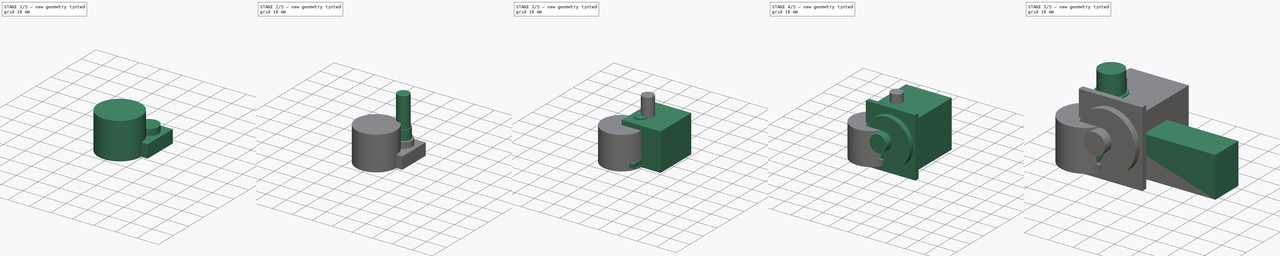
[diagram: build sequence overview — one tinted view per stage of 5, left to right]
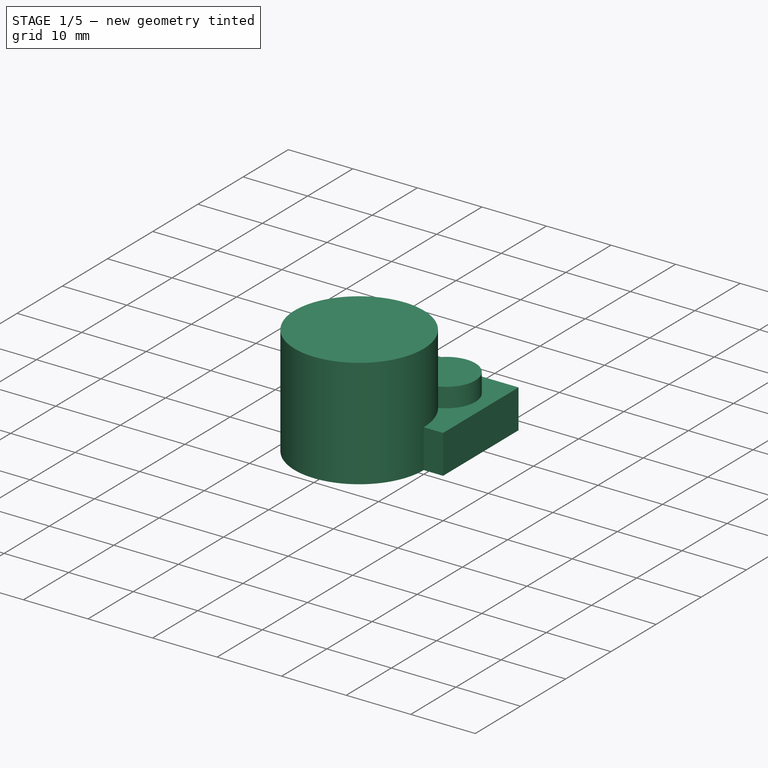
[diagram: stage 1 of 5 — iso view after this stage's code; geometry added in this stage tinted green]
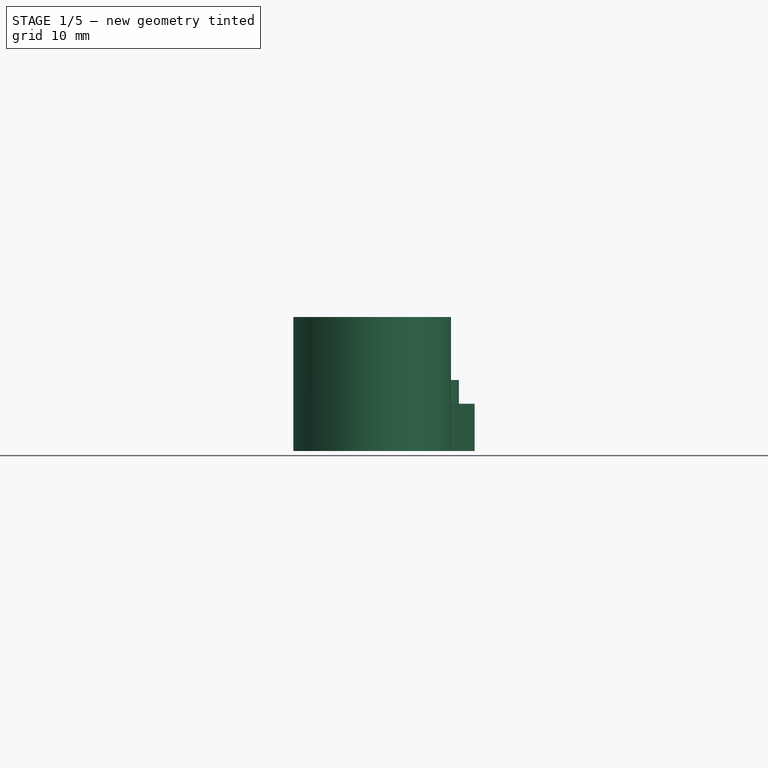
[diagram: stage 1 of 5 — front view after this stage's code; geometry added in this stage tinted green]
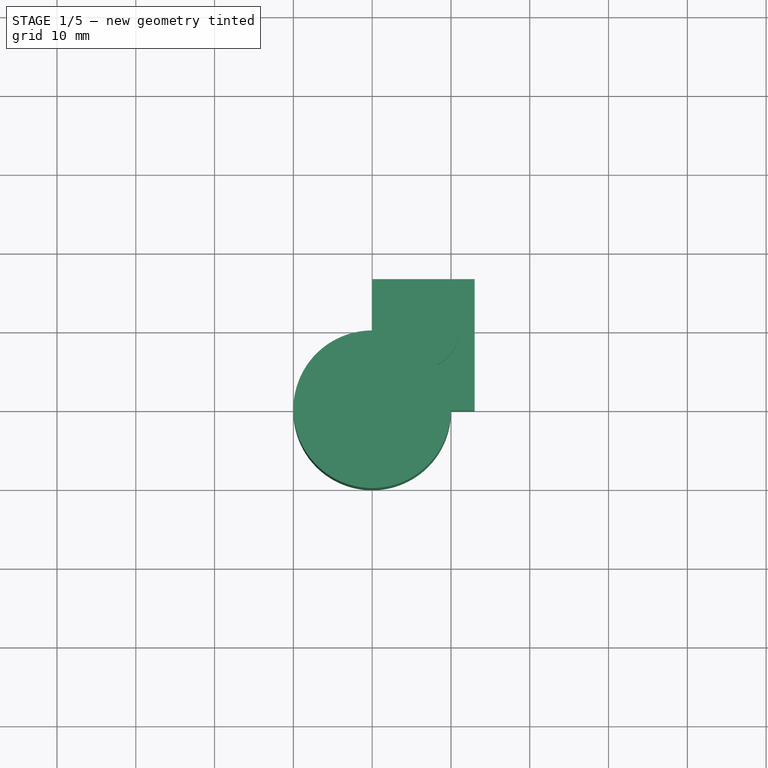
[diagram: stage 1 of 5 — top view after this stage's code; geometry added in this stage tinted green]
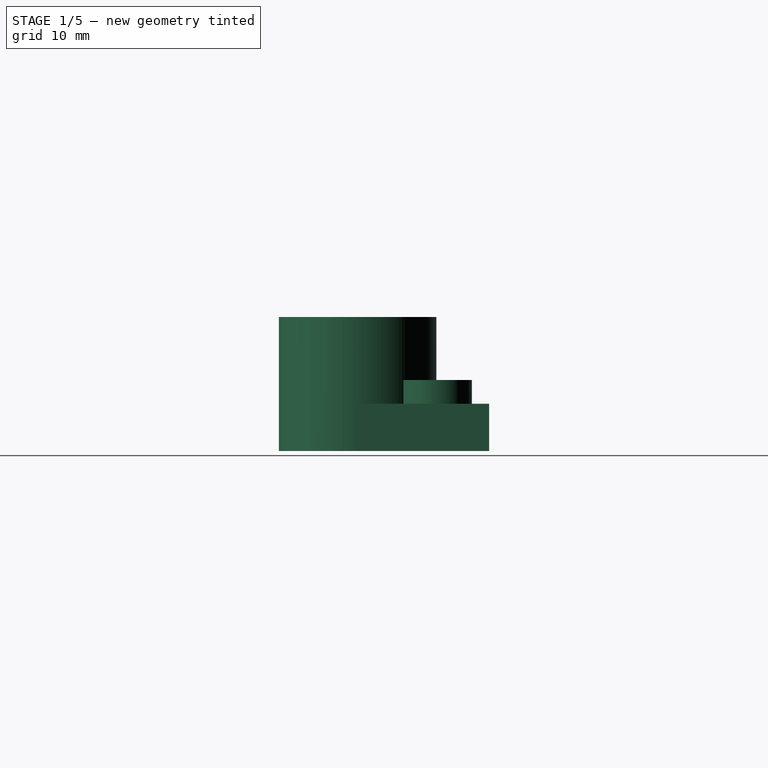
[diagram: stage 1 of 5 — right view after this stage's code; geometry added in this stage tinted green]
FCSTD DOCUMENT  (FreeCAD 0.18R4 (GitTag))
Label: Design
License: All rights reserved
LicenseURL: http://en.wikipedia.org/wiki/All_rights_reserved
objects: Sketcher::SketchObject×25, PartDesign::Pad×21, PartDesign::Body×10, Part::Feature×6, PartDesign::Pocket×4, App::Part×3
note: 91 computed .brp shape members not serialized (recipe doc carries the construction recipe); baked Part::Feature solids carry a one-line shape summary decoded from their .brp

FEATURE [PartDesign::Body] Body009  label="Knob1"
  Group = -> [Sketch019,Pad019,Sketch020,Pocket,Sketch021,Pocket001]
  Origin = -> Origin011
  Placement = pos=(-5,7,-16.4) rot=(1,0,0;3.14159rad)
  Tip = -> Pocket001
FEATURE [App::Part] Part  label="Old_Pot"
  Group = -> [Body006,Body009]
  Origin = -> Origin014
  Placement = pos=(88.6,0,-3.4) rot=(0,0,1;0rad)
FEATURE [Sketcher::SketchObject] Sketch022
  MapMode = 5
  Support = -> [XY_Plane016]
  sketch-geometry (4):
    g0: LineSegment StartX=0 StartY=0 StartZ=0 EndX=13 EndY=0 EndZ=0
    g1: LineSegment StartX=13 StartY=0 StartZ=0 EndX=13 EndY=16.7 EndZ=0
    g2: LineSegment StartX=13 StartY=16.7 StartZ=0 EndX=0 EndY=16.7 EndZ=0
    g3: LineSegment StartX=0 StartY=16.7 StartZ=0 EndX=0 EndY=0 EndZ=0
  constraints (11):
    c: Coincident(g0,g1)
    c: Coincident(g1,g2)
    c: Coincident(g2,g3)
    c: Coincident(g3,g0)
    c: Horizontal(g0)
    c: Horizontal(g2)
    c: Vertical(g1)
    c: Vertical(g3)
    c: Coincident(g0,g-1)
    c: DistanceX(g0,g0) = 13
    c: DistanceY(g3,g3) = 16.7
FEATURE [PartDesign::Pad] Pad020
  Length = 6
  Length2 = 100
  Profile = -> Sketch022
  Type = 0
FEATURE [Sketcher::SketchObject] Sketch023
  MapMode = 5
  Placement = pos=(0,0,6) rot=(0,0,1;0rad)
  Support = -> [Pad020]
  sketch-geometry (1):
    g0: Circle CenterX=6.5 CenterY=10 CenterZ=0 NormalX=0 NormalY=0 NormalZ=1 AngleXU=0 Radius=4.5
  constraints (3):
    c: DistanceX(g-1,g0) = 6.5
    c: DistanceY(g-1,g0) = 10
    c: Radius(g0) = 4.5
FEATURE [PartDesign::Pad] Pad021
  BaseFeature = -> Pad020
  Length = 3
  Length2 = 100
  Profile = -> Sketch023
  Type = 0
FEATURE [PartDesign::Body] Body010  label="PotRVvol"
  Group = -> [Sketch022,Pad020,Sketch023,Pad021,Sketch024,Pad022,Sketch025,Pad023]
  Origin = -> Origin016
  Tip = -> Pad023
FEATURE [Sketcher::SketchObject] Sketch026
  MapMode = 5
  Support = -> [XY_Plane017]
  sketch-geometry (1):
    g0: Circle CenterX=0 CenterY=0 CenterZ=0 NormalX=0 NormalY=0 NormalZ=1 AngleXU=0 Radius=10
  constraints (2):
    c: Coincident(g0,g-1)
    c: Radius(g0) = 10
FEATURE [PartDesign::Pad] Pad024
  Length = 17
  Length2 = 100
  Profile = -> Sketch026
  Type = 0
FEATURE [Sketcher::SketchObject] Sketch028
  MapMode = 5
  Placement = pos=(0,0,0) rot=(1,0,0;3.14159rad)
  Support = -> [Pad024]
  sketch-geometry (1):
    g0: Circle CenterX=0 CenterY=0 CenterZ=0 NormalX=0 NormalY=0 NormalZ=1 AngleXU=0 Radius=9
  constraints (2):
    c: Coincident(g0,g-1)
    c: Radius(g0) = 9
FEATURE [PartDesign::Pocket] Pocket002
  BaseFeature = -> Pad024
  Length = 4.2
  Length2 = 100
  Profile = -> Sketch028
  Type = 0
FEATURE [Sketcher::SketchObject] Sketch027
  MapMode = 5
  Placement = pos=(0,0,4.2) rot=(1,0,0;3.14159rad)
  Support = -> [Pocket002]
  sketch-geometry (1):
    g0: Circle CenterX=0 CenterY=0 CenterZ=0 NormalX=0 NormalY=0 NormalZ=1 AngleXU=0 Radius=3
  constraints (2):
    c: Coincident(g0,g-1)
    c: Radius(g0) = 3
FEATURE [PartDesign::Pocket] Pocket003
  BaseFeature = -> Pocket002
  Length = 11.8
  Length2 = 100
  Profile = -> Sketch027
  Type = 0
FEATURE [PartDesign::Body] Body011  label="KnobVol"
  Group = -> [Sketch026,Pad024,Sketch028,Pocket002,Sketch027,Pocket003]
  Origin = -> Origin017
  Placement = pos=(6.5,10,13) rot=(0,0,1;3.14159rad)
  Tip = -> Pocket003
FEATURE [App::Part] Part001  label="PotVol"
  Group = -> [Body010,Body011]
  Origin = -> Origin015
  Placement = pos=(-6.4,7,-6.6) rot=(0,1,0;3.14159rad)
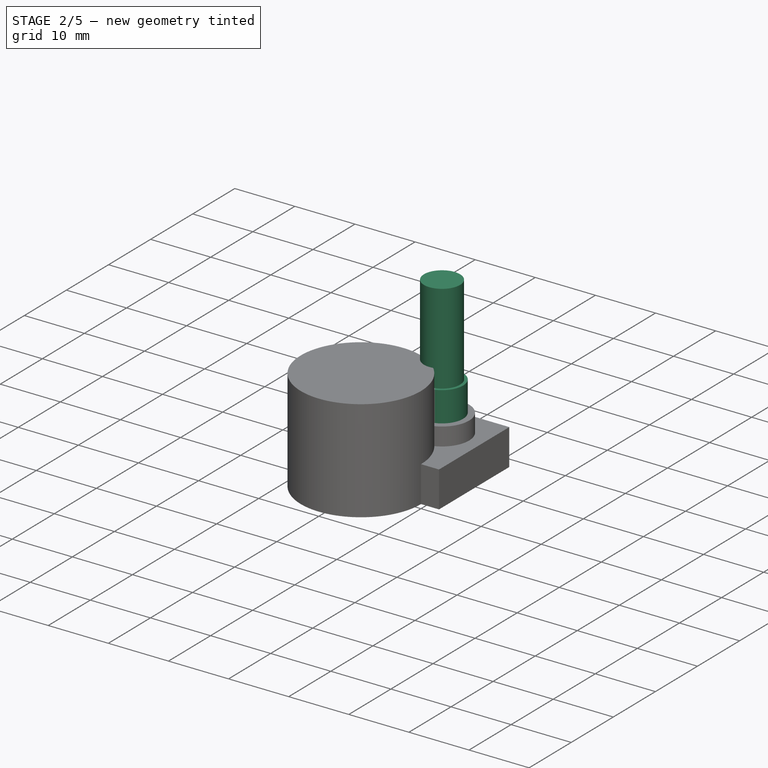
[diagram: stage 2 of 5 — iso view after this stage's code; geometry added in this stage tinted green]
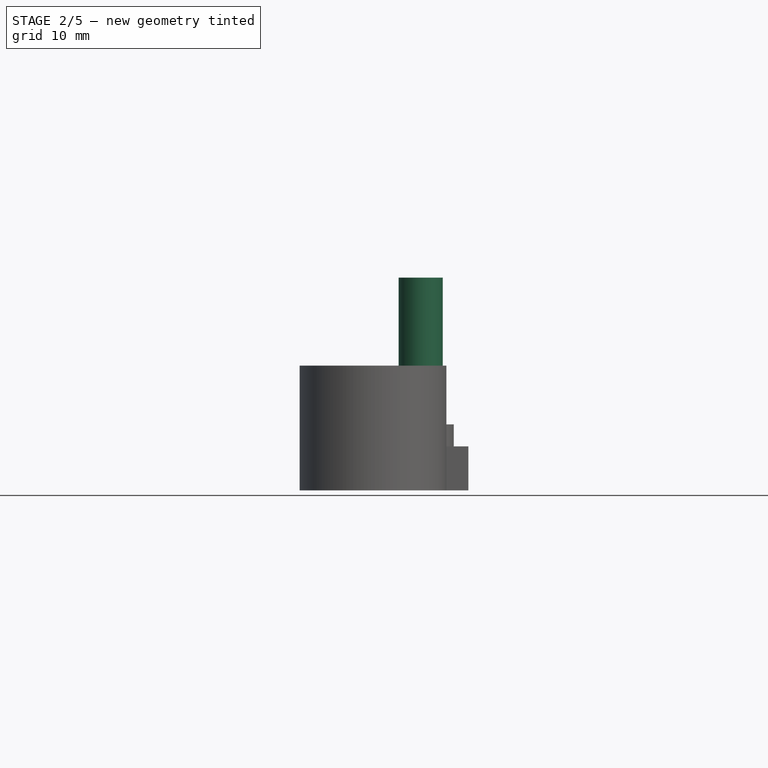
[diagram: stage 2 of 5 — front view after this stage's code; geometry added in this stage tinted green]
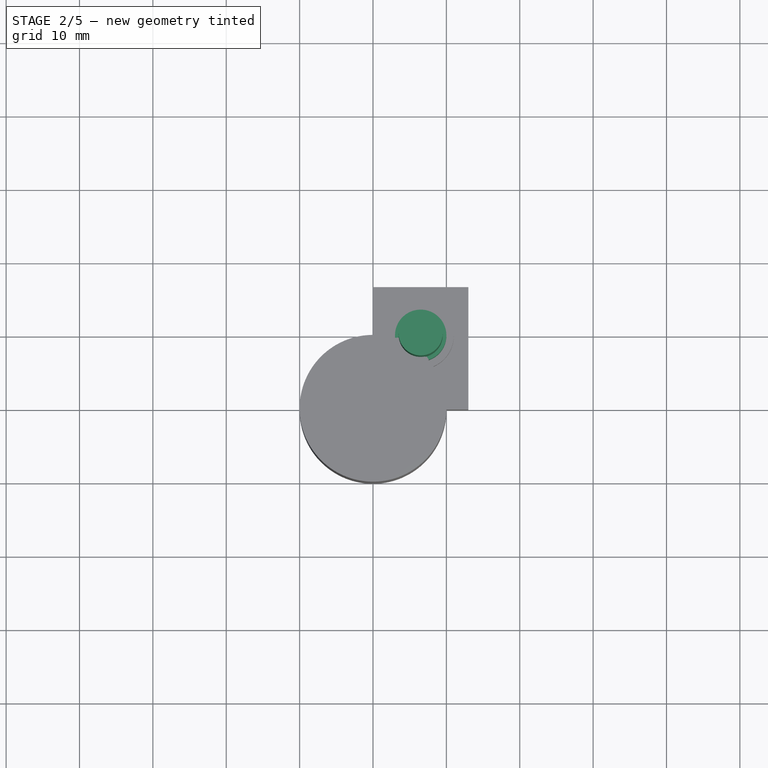
[diagram: stage 2 of 5 — top view after this stage's code; geometry added in this stage tinted green]
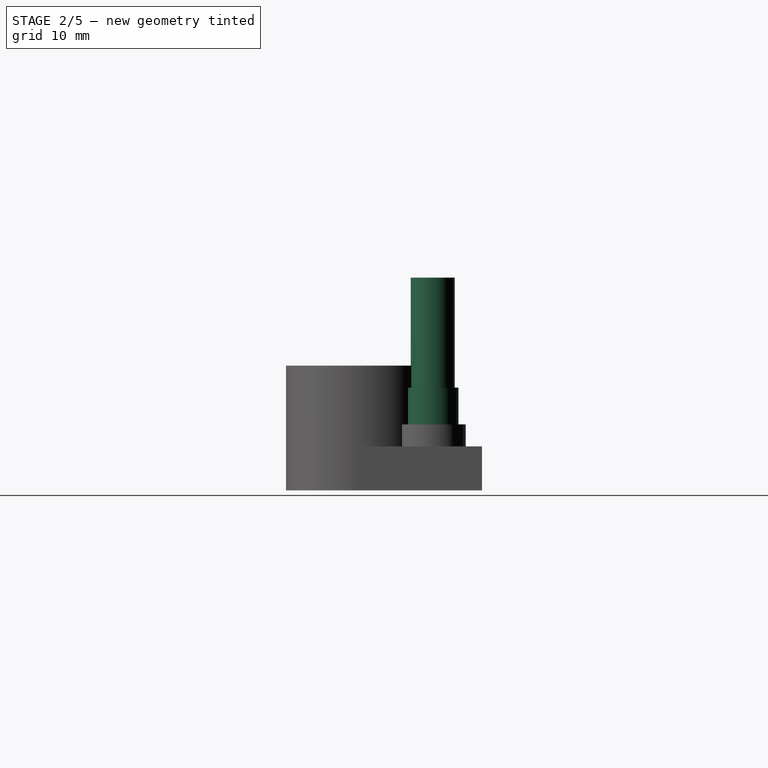
[diagram: stage 2 of 5 — right view after this stage's code; geometry added in this stage tinted green]
FEATURE [PartDesign::Body] Body006  label="Pot1"
  Group = -> [Sketch013,Pad013,Sketch014,Pad014]
  Origin = -> Origin008
  Placement = pos=(5e-16,0,-3.8) rot=(0,1,0;3.14159rad)
  Tip = -> Pad014
FEATURE [Sketcher::SketchObject] Sketch019
  MapMode = 5
  Support = -> [XY_Plane011]
  sketch-geometry (1):
    g0: Circle CenterX=0 CenterY=0 CenterZ=0 NormalX=0 NormalY=0 NormalZ=1 AngleXU=0 Radius=10
  constraints (2):
    c: Coincident(g0,g-1)
    c: Radius(g0) = 10
FEATURE [PartDesign::Pad] Pad019
  Length = 17
  Length2 = 100
  Profile = -> Sketch019
  Type = 0
FEATURE [Sketcher::SketchObject] Sketch020
  MapMode = 5
  Placement = pos=(0,0,0) rot=(1,0,0;3.14159rad)
  Support = -> [Pad019]
  sketch-geometry (1):
    g0: Circle CenterX=0 CenterY=0 CenterZ=0 NormalX=0 NormalY=0 NormalZ=1 AngleXU=0 Radius=9
  constraints (2):
    c: Coincident(g0,g-1)
    c: Radius(g0) = 9
FEATURE [PartDesign::Pocket] Pocket
  BaseFeature = -> Pad019
  Length = 4.2
  Length2 = 100
  Profile = -> Sketch020
  Type = 0
FEATURE [Sketcher::SketchObject] Sketch021
  MapMode = 5
  Placement = pos=(0,0,4.2) rot=(1,0,0;3.14159rad)
  Support = -> [Pocket]
  sketch-geometry (1):
    g0: Circle CenterX=0 CenterY=0 CenterZ=0 NormalX=0 NormalY=0 NormalZ=1 AngleXU=0 Radius=3
  constraints (2):
    c: Coincident(g0,g-1)
    c: Radius(g0) = 3
FEATURE [PartDesign::Pocket] Pocket001
  BaseFeature = -> Pocket
  Length = 11.8
  Length2 = 100
  Profile = -> Sketch021
  Type = 0
FEATURE [Sketcher::SketchObject] Sketch024
  MapMode = 5
  Placement = pos=(0,0,9) rot=(0,0,1;0rad)
  Support = -> [Pad021]
  sketch-geometry (1):
    g0: Circle CenterX=6.5 CenterY=10 CenterZ=0 NormalX=0 NormalY=0 NormalZ=1 AngleXU=0 Radius=3.5
  constraints (3):
    c: DistanceX(g-1,g0) = 6.5
    c: DistanceY(g-1,g0) = 10
    c: Radius(g0) = 3.5
FEATURE [PartDesign::Pad] Pad022
  BaseFeature = -> Pad021
  Length = 5
  Length2 = 100
  Profile = -> Sketch024
  Type = 0
FEATURE [Sketcher::SketchObject] Sketch025
  MapMode = 5
  Placement = pos=(0,0,14) rot=(0,0,1;0rad)
  Support = -> [Pad022]
  sketch-geometry (1):
    g0: Circle CenterX=6.5 CenterY=10 CenterZ=0 NormalX=0 NormalY=0 NormalZ=1 AngleXU=0 Radius=3
  constraints (3):
    c: DistanceX(g-1,g0) = 6.5
    c: DistanceY(g-1,g0) = 10
    c: Radius(g0) = 3
FEATURE [PartDesign::Pad] Pad023
  BaseFeature = -> Pad022
  Length = 15
  Length2 = 100
  Profile = -> Sketch025
  Type = 0
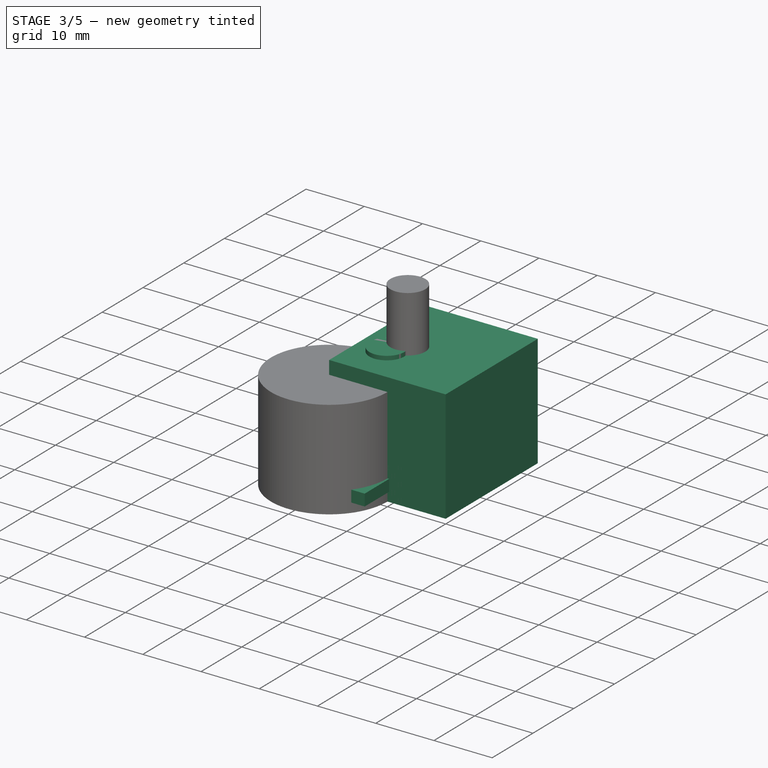
[diagram: stage 3 of 5 — iso view after this stage's code; geometry added in this stage tinted green]
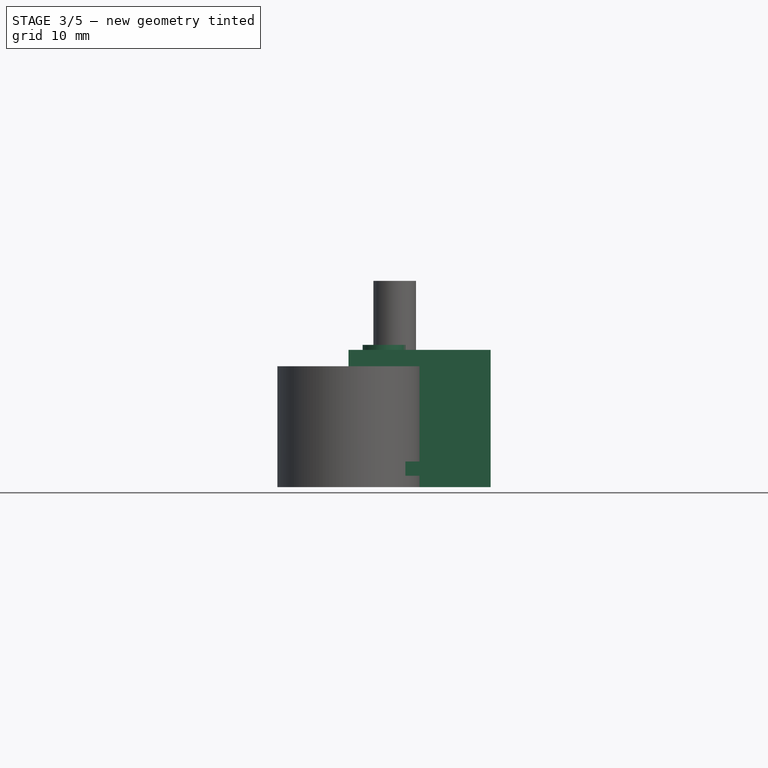
[diagram: stage 3 of 5 — front view after this stage's code; geometry added in this stage tinted green]
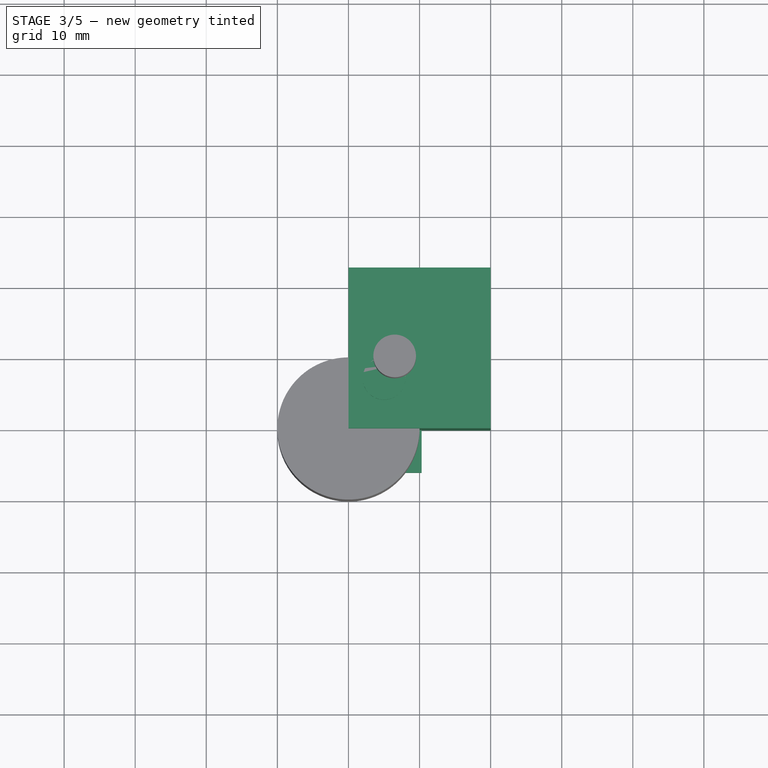
[diagram: stage 3 of 5 — top view after this stage's code; geometry added in this stage tinted green]
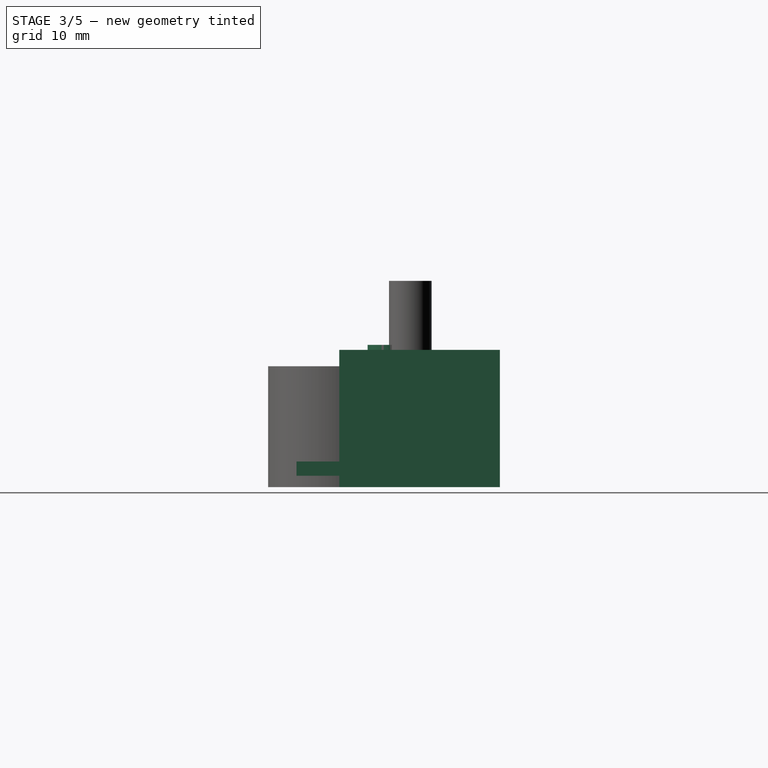
[diagram: stage 3 of 5 — right view after this stage's code; geometry added in this stage tinted green]
FEATURE [PartDesign::Body] Body003  label="XLR"
  Group = -> [Sketch006,Pad006,Sketch007,Pad007,Sketch008,Pad008]
  Origin = -> Origin005
  Placement = pos=(29.5122,-7.07915,11.2) rot=(-0.67559,0.737277,0;3.14159rad)
FEATURE [Sketcher::SketchObject] Sketch009
  MapMode = 5
  Support = -> [XY_Plane006]
  sketch-geometry (4):
    g0: LineSegment StartX=0 StartY=0 StartZ=0 EndX=20 EndY=0 EndZ=0
    g1: LineSegment StartX=20 StartY=0 StartZ=0 EndX=20 EndY=22.6 EndZ=0
    g2: LineSegment StartX=20 StartY=22.6 StartZ=0 EndX=0 EndY=22.6 EndZ=0
    g3: LineSegment StartX=0 StartY=22.6 StartZ=0 EndX=0 EndY=0 EndZ=0
  constraints (11):
    c: Coincident(g0,g1)
    c: Coincident(g1,g2)
    c: Coincident(g2,g3)
    c: Coincident(g3,g0)
    c: Horizontal(g0)
    c: Horizontal(g2)
    c: Vertical(g1)
    c: Vertical(g3)
    c: Coincident(g0,g-1)
    c: DistanceY(g3,g3) = 22.6
    c: DistanceX(g0,g0) = 20
FEATURE [PartDesign::Pad] Pad009
  Length = 19.3
  Length2 = 100
  Profile = -> Sketch009
  Type = 0
FEATURE [PartDesign::Body] Body004  label="Output_jack"
  Group = -> [Sketch009,Pad009,Sketch010,Pad010]
  Origin = -> Origin006
  Placement = pos=(-24.2988,-30.305,11.2) rot=(0.67559,0.737277,0;3.14159rad)
  Tip = -> Pad010
FEATURE [Sketcher::SketchObject] Sketch011
  MapMode = 5
  Support = -> [XY_Plane007]
  sketch-geometry (4):
    g0: LineSegment StartX=0 StartY=0 StartZ=0 EndX=14.6 EndY=0 EndZ=0
    g1: LineSegment StartX=14.6 StartY=0 StartZ=0 EndX=14.6 EndY=4.3 EndZ=0
    g2: LineSegment StartX=14.6 StartY=4.3 StartZ=0 EndX=0 EndY=4.3 EndZ=0
    g3: LineSegment StartX=0 StartY=4.3 StartZ=0 EndX=0 EndY=0 EndZ=0
  constraints (11):
    c: Coincident(g0,g1)
    c: Coincident(g1,g2)
    c: Coincident(g2,g3)
    c: Coincident(g3,g0)
    c: Horizontal(g0)
    c: Horizontal(g2)
    c: Vertical(g1)
    c: Vertical(g3)
    c: Coincident(g0,g-1)
    c: DistanceY(g3,g3) = 4.3
    c: DistanceX(g2,g2) = 14.6
FEATURE [PartDesign::Pad] Pad011
  Length = 4.7
  Length2 = 100
  Profile = -> Sketch011
  Type = 0
FEATURE [Sketcher::SketchObject] Sketch012
  MapMode = 5
  Placement = pos=(0,0,0) rot=(1,0,0;1.5708rad)
  Support = -> [Pad011]
  sketch-geometry (4):
    g0: LineSegment StartX=4.3 StartY=1.6 StartZ=0 EndX=10.3 EndY=1.6 EndZ=0
    g1: LineSegment StartX=10.3 StartY=1.6 StartZ=0 EndX=10.3 EndY=3.6 EndZ=0
    g2: LineSegment StartX=10.3 StartY=3.6 StartZ=0 EndX=4.3 EndY=3.6 EndZ=0
    g3: LineSegment StartX=4.3 StartY=3.6 StartZ=0 EndX=4.3 EndY=1.6 EndZ=0
  constraints (12):
    c: Coincident(g0,g1)
    c: Coincident(g1,g2)
    c: Coincident(g2,g3)
    c: Coincident(g3,g0)
    c: Horizontal(g0)
    c: Horizontal(g2)
    c: Vertical(g1)
    c: Vertical(g3)
    c: DistanceX(g2,g2) = 6
    c: DistanceY(g3,g3) = 2
    c: DistanceY(g-1,g0) = 1.6
    c: DistanceX(g-1,g0) = 4.3
FEATURE [PartDesign::Pad] Pad012
  BaseFeature = -> Pad011
  Length = 6
  Length2 = 100
  Profile = -> Sketch012
  Type = 0
FEATURE [PartDesign::Body] Body005  label="Switch_button_disto"
  Group = -> [Sketch011,Pad011,Sketch012,Pad012]
  Origin = -> Origin007
  Placement = pos=(-29.228,-5.78136,11.2) rot=(0.67559,0.737277,0;3.14159rad)
  Tip = -> Pad012
FEATURE [Sketcher::SketchObject] Sketch013
  MapMode = 5
  Support = -> [XY_Plane008]
  sketch-geometry (4):
    g0: LineSegment StartX=0 StartY=0 StartZ=0 EndX=10 EndY=0 EndZ=0
    g1: LineSegment StartX=10 StartY=0 StartZ=0 EndX=10 EndY=12.5 EndZ=0
    g2: LineSegment StartX=10 StartY=12.5 StartZ=0 EndX=0 EndY=12.5 EndZ=0
    g3: LineSegment StartX=0 StartY=12.5 StartZ=0 EndX=0 EndY=0 EndZ=0
  constraints (11):
    c: Coincident(g0,g1)
    c: Coincident(g1,g2)
    c: Coincident(g2,g3)
    c: Coincident(g3,g0)
    c: Horizontal(g0)
    c: Horizontal(g2)
    c: Vertical(g1)
    c: Vertical(g3)
    c: Coincident(g0,g-1)
    c: DistanceY(g3,g3) = 12.5
    c: DistanceX(g2,g2) = 10
FEATURE [PartDesign::Pad] Pad013
  Length = 8
  Length2 = 100
  Profile = -> Sketch013
  Type = 0
FEATURE [Sketcher::SketchObject] Sketch014
  MapMode = 5
  Placement = pos=(0,0,8) rot=(0,0,1;0rad)
  Support = -> [Pad013]
  sketch-geometry (1):
    g0: Circle CenterX=5 CenterY=7 CenterZ=0 NormalX=0 NormalY=0 NormalZ=1 AngleXU=0 Radius=3
  constraints (3):
    c: DistanceY(g-1,g0) = 7
    c: DistanceX(g-1,g0) = 5
    c: Radius(g0) = 3
FEATURE [PartDesign::Pad] Pad014
  BaseFeature = -> Pad013
  Length = 12
  Length2 = 100
  Profile = -> Sketch014
  Type = 0
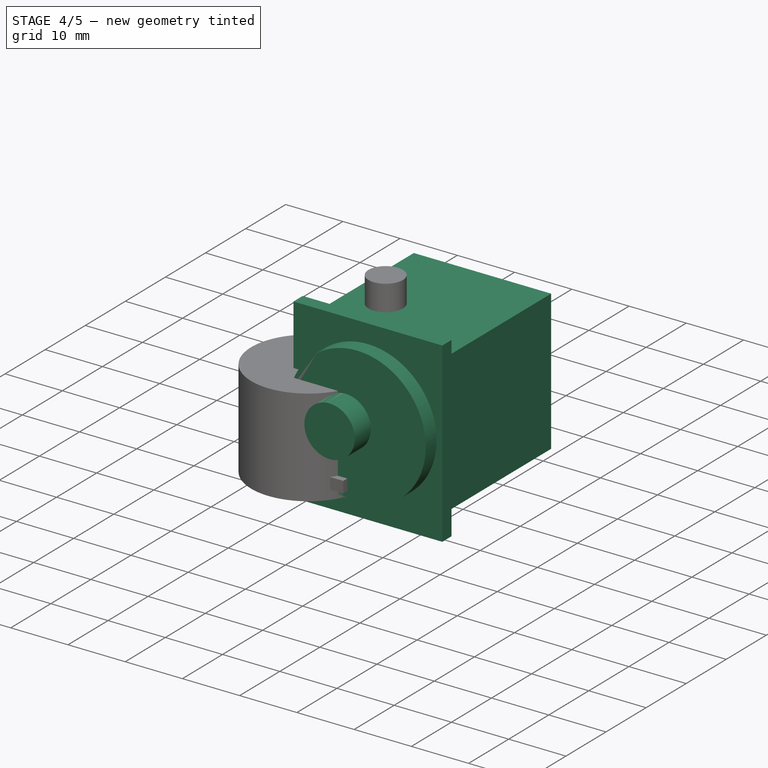
[diagram: stage 4 of 5 — iso view after this stage's code; geometry added in this stage tinted green]
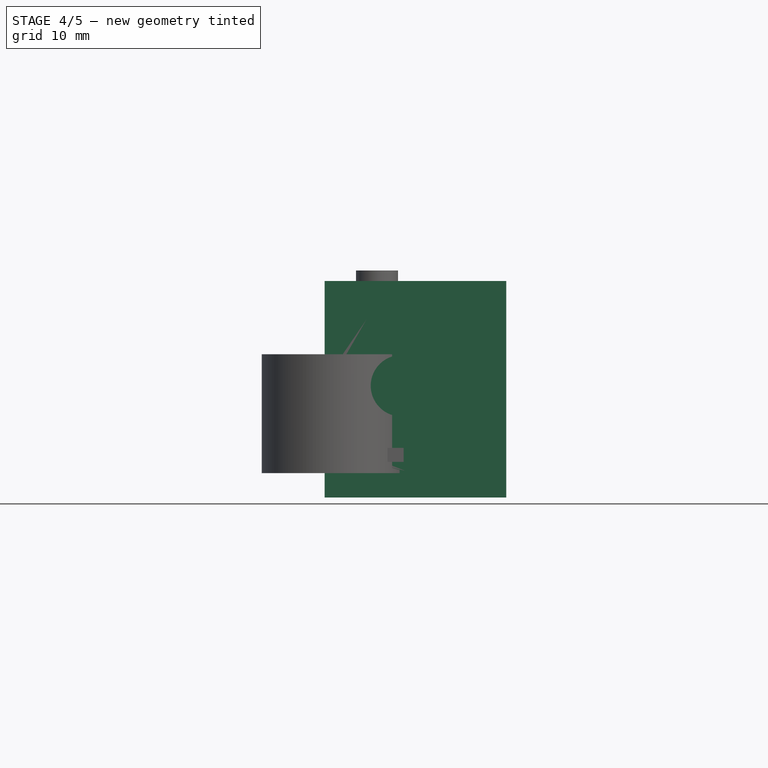
[diagram: stage 4 of 5 — front view after this stage's code; geometry added in this stage tinted green]
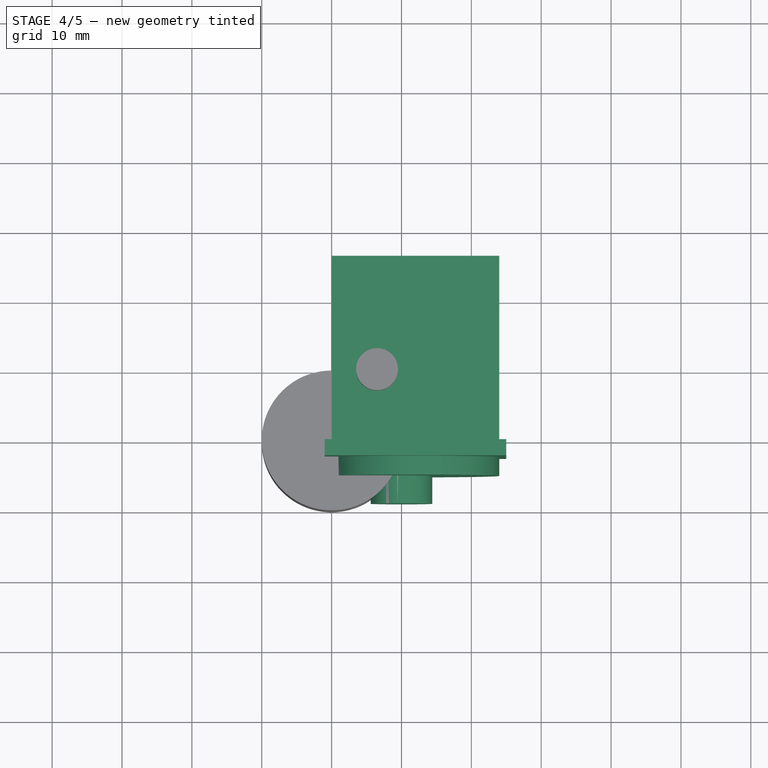
[diagram: stage 4 of 5 — top view after this stage's code; geometry added in this stage tinted green]
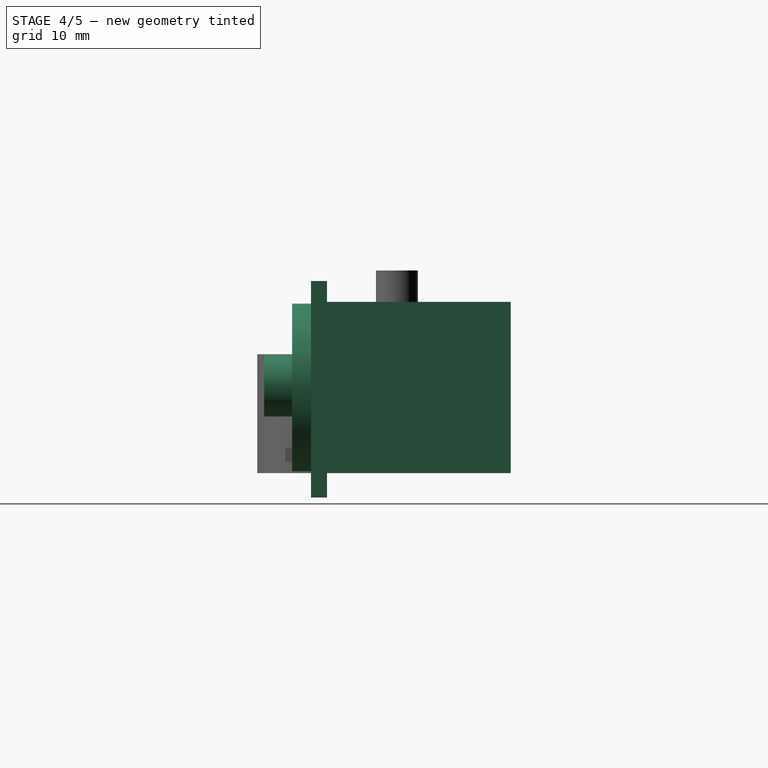
[diagram: stage 4 of 5 — right view after this stage's code; geometry added in this stage tinted green]
FEATURE [PartDesign::Body] Body001  label="Power_Jack"
  Group = -> [Sketch001,Pad001,Sketch002,Pad002]
  Origin = -> Origin003
  Placement = pos=(13.4,53,11.2) rot=(1,0,0;3.14159rad)
  Tip = -> Pad002
FEATURE [Sketcher::SketchObject] Sketch003
  MapMode = 5
  Support = -> [XY_Plane004]
  sketch-geometry (4):
    g0: LineSegment StartX=0 StartY=0 StartZ=0 EndX=12 EndY=0 EndZ=0
    g1: LineSegment StartX=12 StartY=0 StartZ=0 EndX=12 EndY=13.4 EndZ=0
    g2: LineSegment StartX=12 StartY=13.4 StartZ=0 EndX=0 EndY=13.4 EndZ=0
    g3: LineSegment StartX=0 StartY=13.4 StartZ=0 EndX=0 EndY=0 EndZ=0
  constraints (11):
    c: Coincident(g0,g1)
    c: Coincident(g1,g2)
    c: Coincident(g2,g3)
    c: Coincident(g3,g0)
    c: Horizontal(g0)
    c: Horizontal(g2)
    c: Vertical(g1)
    c: Vertical(g3)
    c: Coincident(g0,g-1)
    c: DistanceY(g3,g3) = 13.4
    c: DistanceX(g0,g0) = 12
FEATURE [PartDesign::Pad] Pad003
  Length = 13
  Length2 = 100
  Profile = -> Sketch003
  Type = 0
FEATURE [PartDesign::Body] Body002  label="FootSwitch"
  Group = -> [Sketch003,Pad003,Sketch004,Pad004,Sketch005,Pad005]
  Origin = -> Origin004
  Placement = pos=(-6.2,6.8,-2.4) rot=(1,0,0;3.14159rad)
  Tip = -> Pad005
FEATURE [Sketcher::SketchObject] Sketch006
  MapMode = 5
  Support = -> [XY_Plane005]
  sketch-geometry (4):
    g0: LineSegment StartX=0 StartY=0 StartZ=0 EndX=24 EndY=0 EndZ=0
    g1: LineSegment StartX=24 StartY=0 StartZ=0 EndX=24 EndY=26.3 EndZ=0
    g2: LineSegment StartX=24 StartY=26.3 StartZ=0 EndX=0 EndY=26.3 EndZ=0
    g3: LineSegment StartX=0 StartY=26.3 StartZ=0 EndX=0 EndY=0 EndZ=0
  constraints (11):
    c: Coincident(g0,g1)
    c: Coincident(g1,g2)
    c: Coincident(g2,g3)
    c: Coincident(g3,g0)
    c: Horizontal(g0)
    c: Horizontal(g2)
    c: Vertical(g1)
    c: Vertical(g3)
    c: Coincident(g0,g-1)
    c: DistanceX(g0,g0) = 24
    c: DistanceY(g3,g3) = 26.3
FEATURE [PartDesign::Pad] Pad006
  Length = 24.5
  Length2 = 100
  Profile = -> Sketch006
  Type = 0
FEATURE [Sketcher::SketchObject] Sketch007
  MapMode = 5
  Placement = pos=(0,0,0) rot=(1,0,0;1.5708rad)
  Support = -> [Pad006]
  sketch-geometry (4):
    g0: LineSegment StartX=-1 StartY=27.5 StartZ=0 EndX=25 EndY=27.5 EndZ=0
    g1: LineSegment StartX=25 StartY=27.5 StartZ=0 EndX=25 EndY=-3.5 EndZ=0
    g2: LineSegment StartX=25 StartY=-3.5 StartZ=0 EndX=-1 EndY=-3.5 EndZ=0
    g3: LineSegment StartX=-1 StartY=-3.5 StartZ=0 EndX=-1 EndY=27.5 EndZ=0
  constraints (12):
    c: Coincident(g0,g1)
    c: Coincident(g1,g2)
    c: Coincident(g2,g3)
    c: Coincident(g3,g0)
    c: Horizontal(g0)
    c: Horizontal(g2)
    c: Vertical(g1)
    c: Vertical(g3)
    c: DistanceX(g0,g0) = 26
    c: DistanceY(g3,g3) = 31
    c: DistanceX(g2,g-1) = 1
    c: DistanceY(g2,g-1) = 3.5
FEATURE [PartDesign::Pad] Pad007
  BaseFeature = -> Pad006
  Length = 2.3
  Length2 = 100
  Profile = -> Sketch007
  Type = 0
FEATURE [Sketcher::SketchObject] Sketch008
  MapMode = 5
  Placement = pos=(0,-2.3,5e-16) rot=(1,0,0;1.5708rad)
  Support = -> [Pad007]
  sketch-geometry (1):
    g0: Circle CenterX=12 CenterY=12.25 CenterZ=0 NormalX=0 NormalY=0 NormalZ=1 AngleXU=0 Radius=12
  constraints (3):
    c: DistanceX(g0) = 12
    c: DistanceY(g-1,g0) = 12.25
    c: Radius(g0) = 12
FEATURE [PartDesign::Pad] Pad008
  BaseFeature = -> Pad007
  Length = 2.7
  Length2 = 100
  Profile = -> Sketch008
  Type = 0
FEATURE [Sketcher::SketchObject] Sketch010
  MapMode = 5
  Placement = pos=(0,0,0) rot=(1,0,0;1.5708rad)
  Support = -> [Pad009]
  sketch-geometry (1):
    g0: Circle CenterX=10 CenterY=12.5 CenterZ=0 NormalX=0 NormalY=0 NormalZ=1 AngleXU=0 Radius=4.4
  constraints (3):
    c: DistanceY(g-1,g0) = 12.5
    c: DistanceX(g-1,g0) = 10
    c: Radius(g0) = 4.4
FEATURE [PartDesign::Pad] Pad010
  BaseFeature = -> Pad009
  Length = 9
  Length2 = 100
  Profile = -> Sketch010
  Type = 0
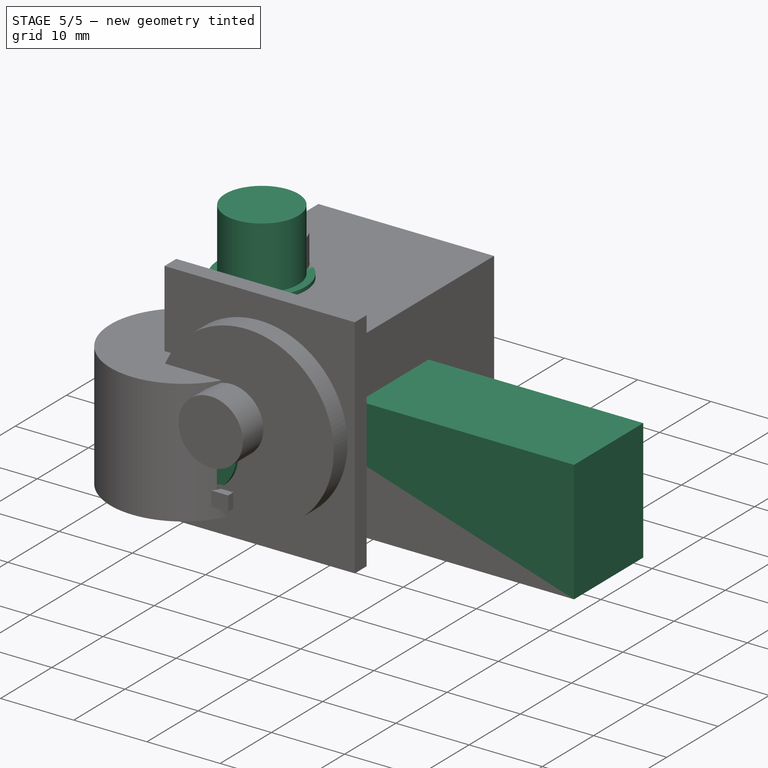
[diagram: stage 5 of 5 — iso view after this stage's code; geometry added in this stage tinted green]
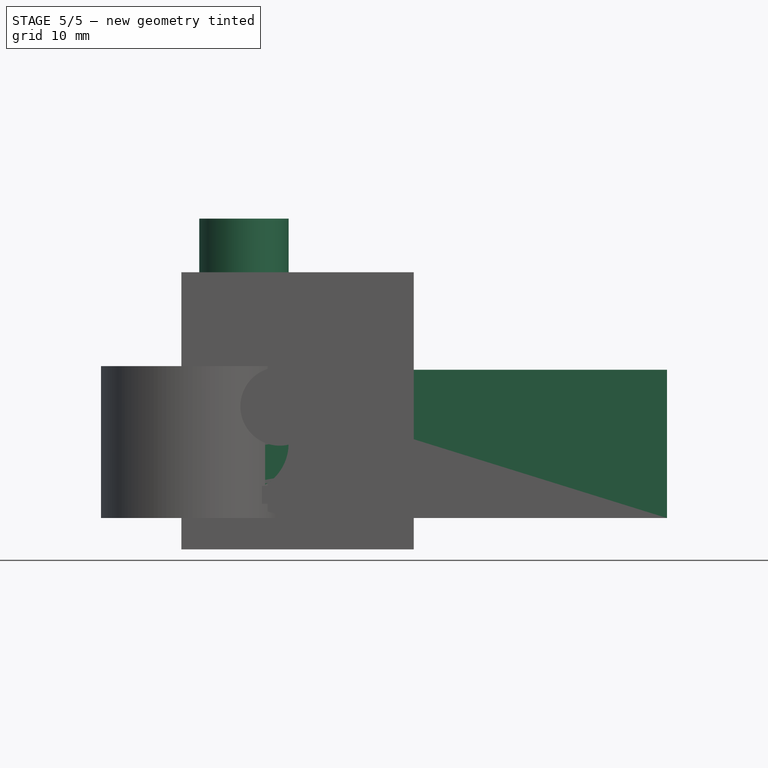
[diagram: stage 5 of 5 — front view after this stage's code; geometry added in this stage tinted green]
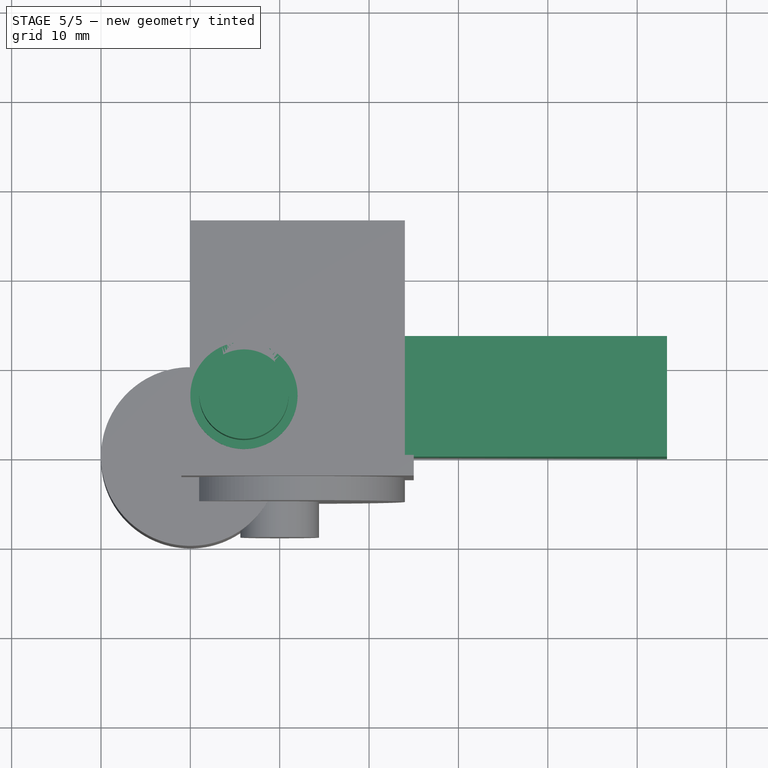
[diagram: stage 5 of 5 — top view after this stage's code; geometry added in this stage tinted green]
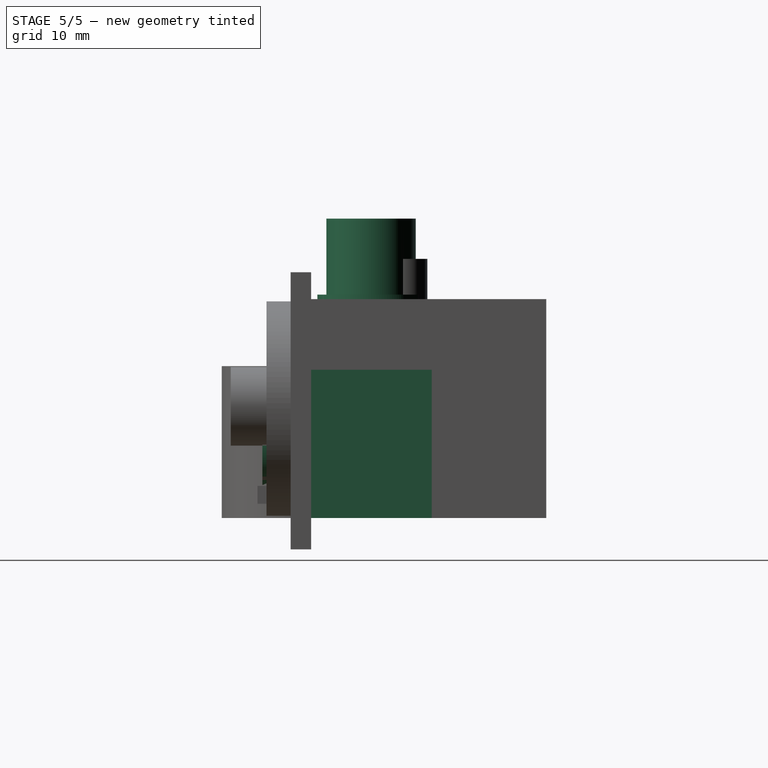
[diagram: stage 5 of 5 — right view after this stage's code; geometry added in this stage tinted green]
FEATURE [Part::Feature] Part__Feature  label="1590TRPB Box"
  shape: bbox 79.02 x 112 x 35.29 mm, 83 faces (baked)
FEATURE [Part::Feature] Part__Feature001  label="1590TRPB Lid"
  Placement = pos=(-3.4e-14,-4.5e-14,0) rot=(0,1,0;3.14159rad)
  shape: bbox 79.05 x 112 x 6 mm, 100 faces (baked)
FEATURE [Part::Feature] Part__Feature002  label="(screw M3.5-0.6X 12mm FH)"
  Placement = pos=(-34.29,50.8,1.73) rot=(0.57735,0.57735,0.57735;2.0944rad)
  shape: bbox 6.644 x 6.644 x 11.73 mm, 25 faces (baked)
FEATURE [Part::Feature] Part__Feature003  label="(screw M3.5-0.6X 12mm FH)001"
  Placement = pos=(-25.4,-50.8,1.73) rot=(0.57735,0.57735,0.57735;2.0944rad)
  shape: bbox 6.644 x 6.644 x 11.73 mm, 25 faces (baked)
FEATURE [Part::Feature] Part__Feature004  label="(screw M3.5-0.6X 12mm FH)002"
  Placement = pos=(25.4,-50.8,1.73) rot=(0.57735,-0.57735,-0.57735;2.0944rad)
  shape: bbox 6.644 x 6.644 x 11.73 mm, 25 faces (baked)
FEATURE [Part::Feature] Part__Feature005  label="(screw M3.5-0.6X 12mm FH)003"
  Placement = pos=(34.29,50.8,1.73) rot=(0.57735,0.57735,0.57735;2.0944rad)
  shape: bbox 6.644 x 6.644 x 11.73 mm, 25 faces (baked)
FEATURE [App::Part] _590TRPB  label="1590TRPB"
  Group = -> [Part__Feature,Part__Feature001,Part__Feature002,Part__Feature003,Part__Feature004,Part__Feature005]
  Origin = -> Origin
  Placement = pos=(0,0,16) rot=(0,0,1;0rad)
FEATURE [Sketcher::SketchObject] Sketch
  MapMode = 5
  Support = -> [XY_Plane002]
  sketch-geometry (4):
    g0: LineSegment StartX=0 StartY=0 StartZ=0 EndX=53.34 EndY=0 EndZ=0
    g1: LineSegment StartX=53.34 StartY=0 StartZ=0 EndX=53.34 EndY=13.5 EndZ=0
    g2: LineSegment StartX=53.34 StartY=13.5 StartZ=0 EndX=0 EndY=13.5 EndZ=0
    g3: LineSegment StartX=0 StartY=13.5 StartZ=0 EndX=0 EndY=0 EndZ=0
  constraints (11):
    c: Coincident(g0,g1)
    c: Coincident(g1,g2)
    c: Coincident(g2,g3)
    c: Coincident(g3,g0)
    c: Horizontal(g0)
    c: Horizontal(g2)
    c: Vertical(g1)
    c: Vertical(g3)
    c: Coincident(g0,g-1)
    c: DistanceX(g0,g0) = 53.34
    c: DistanceY(g3,g3) = 13.5
FEATURE [PartDesign::Pad] Pad
  Length = 16.6
  Length2 = 100
  Profile = -> Sketch
  Type = 0
FEATURE [PartDesign::Body] Body  label="Battery_Holder"
  Group = -> [Sketch,Pad]
  Origin = -> Origin002
  Placement = pos=(-24.8,37.2,11.2) rot=(1,0,0;3.14159rad)
  Tip = -> Pad
FEATURE [Sketcher::SketchObject] Sketch001
  MapMode = 5
  Support = -> [XY_Plane003]
  sketch-geometry (4):
    g0: LineSegment StartX=0 StartY=0 StartZ=0 EndX=11 EndY=0 EndZ=0
    g1: LineSegment StartX=11 StartY=0 StartZ=0 EndX=11 EndY=13.94 EndZ=0
    g2: LineSegment StartX=11 StartY=13.94 StartZ=0 EndX=0 EndY=13.94 EndZ=0
    g3: LineSegment StartX=0 StartY=13.94 StartZ=0 EndX=0 EndY=0 EndZ=0
  constraints (11):
    c: Coincident(g0,g1)
    c: Coincident(g1,g2)
    c: Coincident(g2,g3)
    c: Coincident(g3,g0)
    c: Horizontal(g0)
    c: Horizontal(g2)
    c: Vertical(g1)
    c: Vertical(g3)
    c: Coincident(g0,g-1)
    c: DistanceX(g0,g0) = 11
    c: DistanceY(g3,g3) = 13.94
FEATURE [PartDesign::Pad] Pad001
  Length = 13.88
  Length2 = 100
  Profile = -> Sketch001
  Type = 0
FEATURE [Sketcher::SketchObject] Sketch002
  MapMode = 5
  Placement = pos=(0,0,0) rot=(1,0,0;1.5708rad)
  Support = -> [Pad001]
  sketch-geometry (1):
    g0: Circle CenterX=5.5 CenterY=8.38 CenterZ=0 NormalX=0 NormalY=0 NormalZ=1 AngleXU=0 Radius=5.5
  constraints (3):
    c: Radius(g0) = 5.5
    c: DistanceX(g-1,g0) = 5.5
    c: DistanceY(g-1,g0) = 8.38
FEATURE [PartDesign::Pad] Pad002
  BaseFeature = -> Pad001
  Length = 5.46
  Length2 = 100
  Profile = -> Sketch002
  Type = 0
FEATURE [Sketcher::SketchObject] Sketch004
  MapMode = 5
  Placement = pos=(0,0,13) rot=(0,0,1;0rad)
  Support = -> [Pad003]
  sketch-geometry (1):
    g0: Circle CenterX=6 CenterY=6.7 CenterZ=0 NormalX=0 NormalY=0 NormalZ=1 AngleXU=0 Radius=6
  constraints (3):
    c: DistanceY(g-1,g0) = 6.7
    c: DistanceX(g-1,g0) = 6
    c: Radius(g0) = 6
FEATURE [PartDesign::Pad] Pad004
  BaseFeature = -> Pad003
  Length = 12
  Length2 = 100
  Profile = -> Sketch004
  Type = 0
FEATURE [Sketcher::SketchObject] Sketch005
  MapMode = 5
  Placement = pos=(0,0,25) rot=(0,0,1;0rad)
  Support = -> [Pad004]
  sketch-geometry (1):
    g0: Circle CenterX=6 CenterY=6.7 CenterZ=0 NormalX=0 NormalY=0 NormalZ=1 AngleXU=0 Radius=5
  constraints (3):
    c: DistanceY(g-1,g0) = 6.7
    c: DistanceX(g-1,g0) = 6
    c: Radius(g0) = 5
FEATURE [PartDesign::Pad] Pad005
  BaseFeature = -> Pad004
  Length = 8.5
  Length2 = 100
  Profile = -> Sketch005
  Type = 0
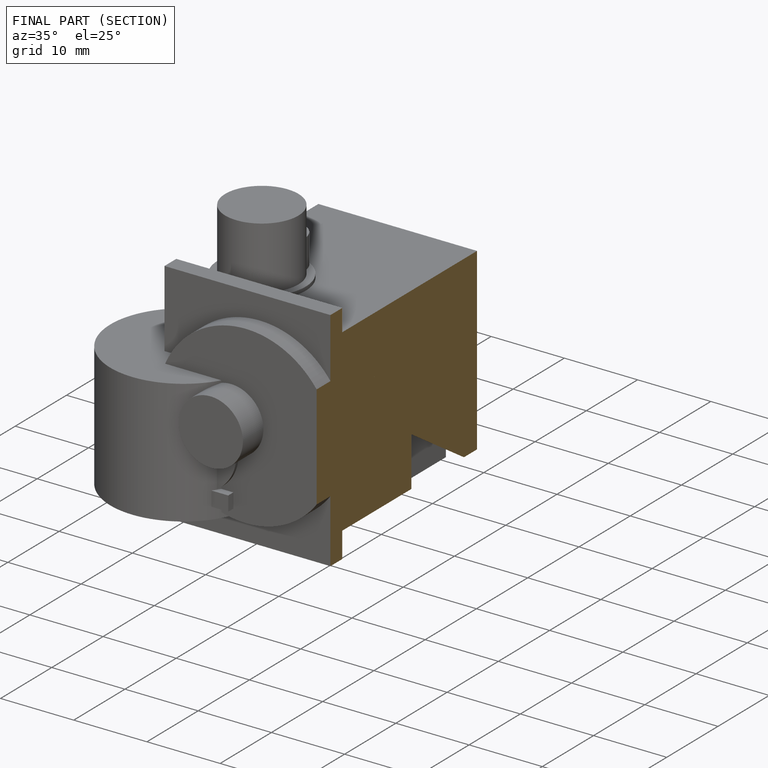
[diagram: finished part — half-section view (interior)]
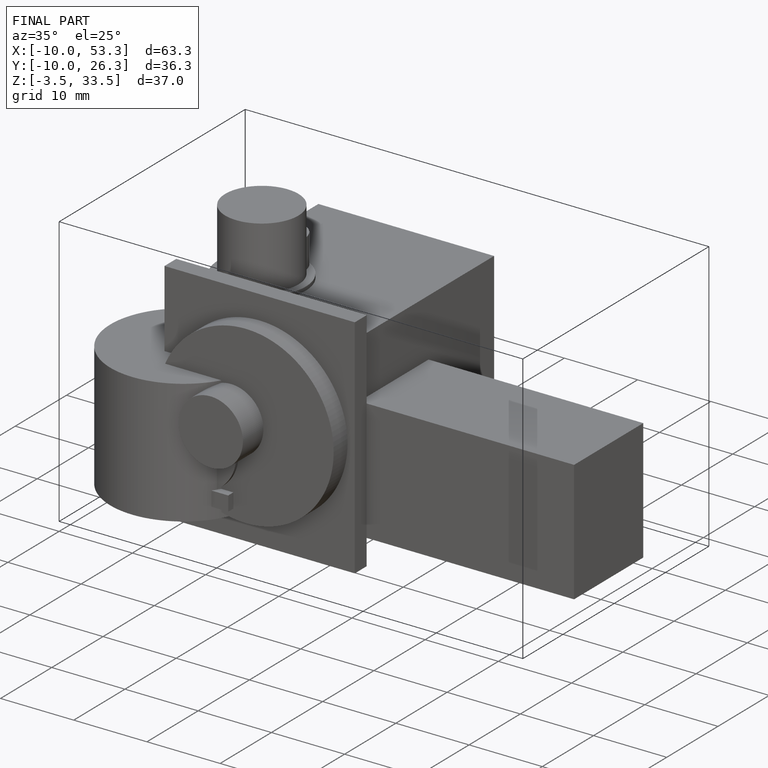
[diagram: finished part — iso view with bounding-box wireframe]
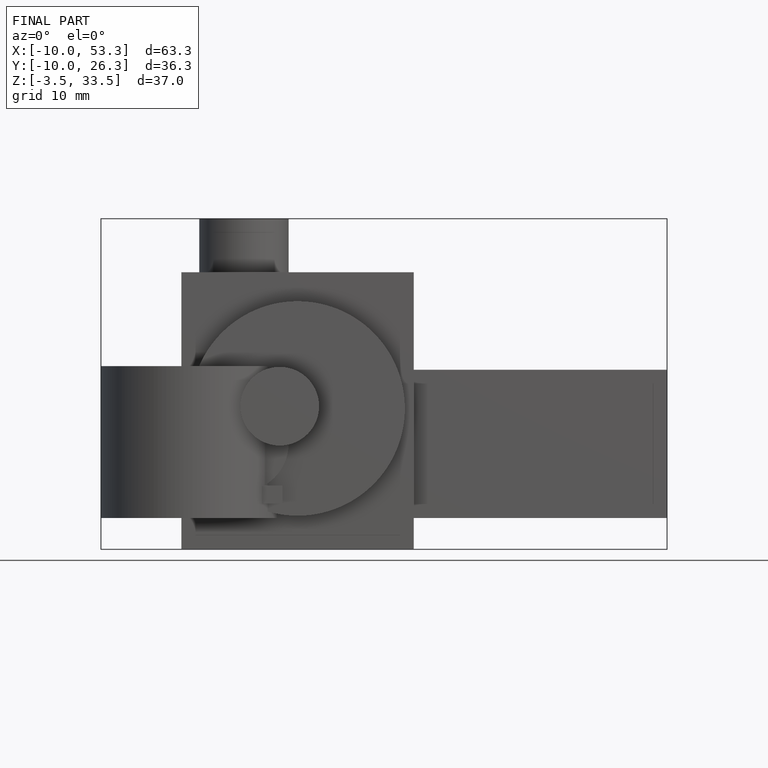
[diagram: finished part — front view with bounding-box wireframe]
